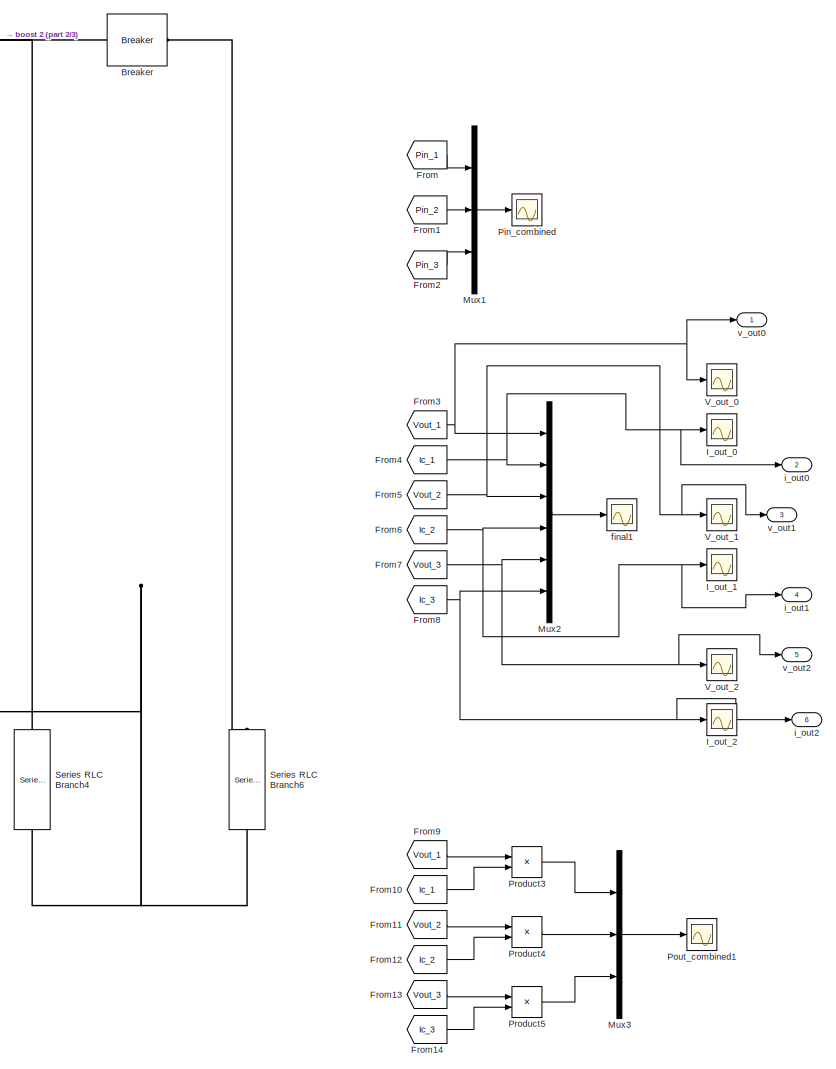
[diagram: root canvas - part 1/3, right side, full height]
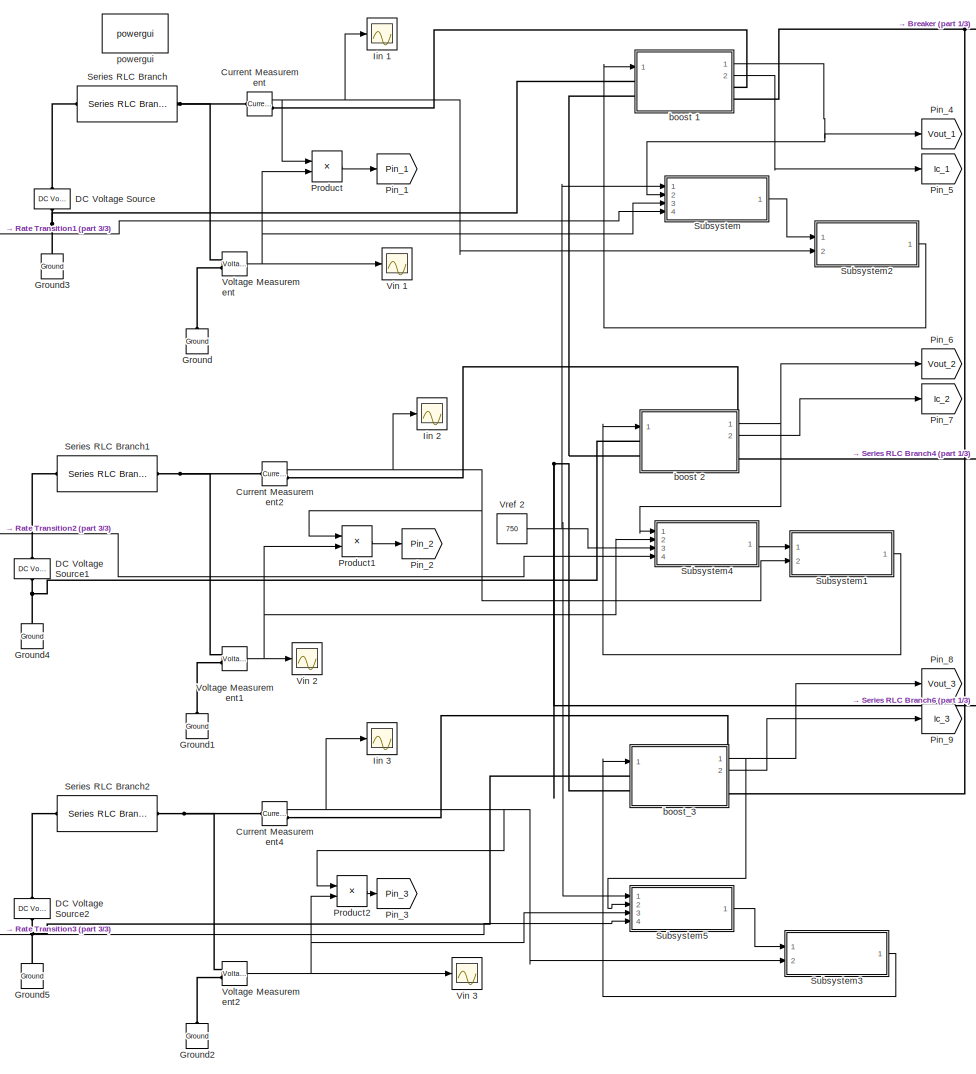
[diagram: root canvas - part 2/3, left side, full height]
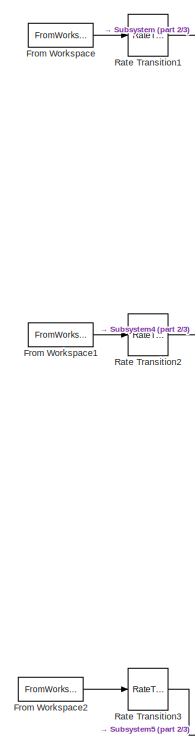
[diagram: root canvas - part 3/3, middle left region]
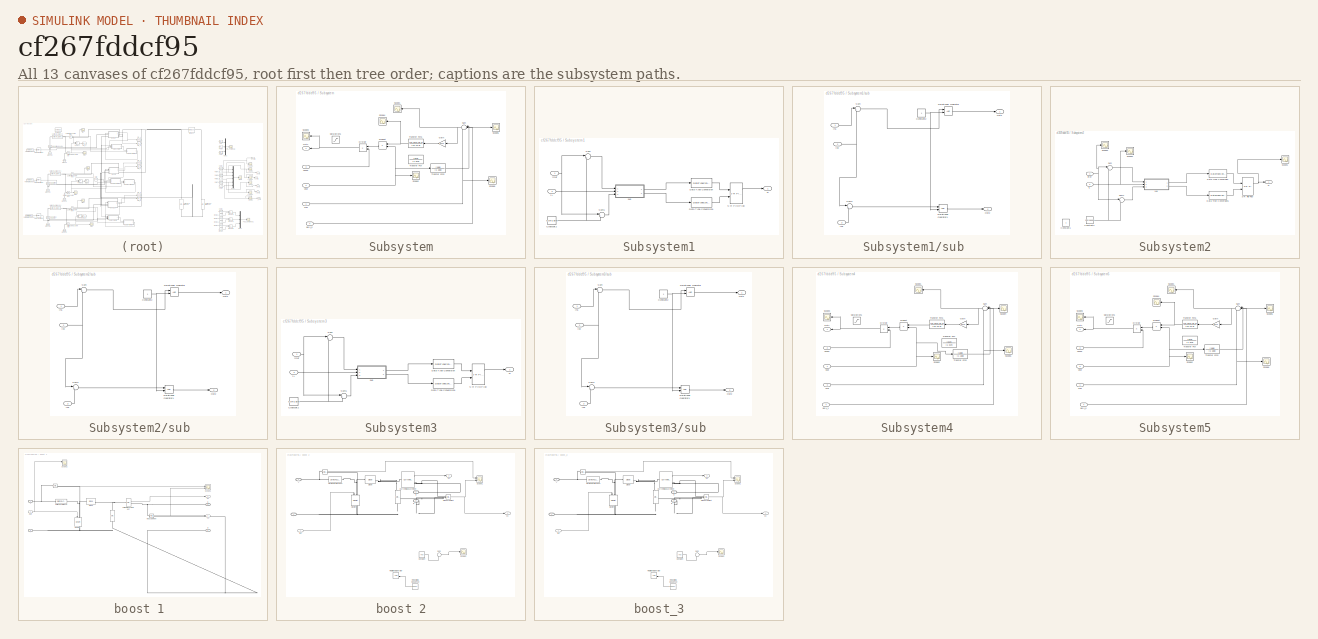
[diagram: thumbnail index - all 13 canvases of the model, root first then tree order]
MODEL slx_cf267fddcf95
KIND model
CONFIG AbsTol = auto
CONFIG EnableMultiTasking = on
CONFIG FixedStep = 1e-2
CONFIG MaxStep = auto
CONFIG MinStep = auto
CONFIG RelTol = 1e-3
CONFIG SampleTimeConstraint = Unconstrained
CONFIG Solver = ode3
CONFIG SolverName = ode3
CONFIG StartTime = 0.0
CONFIG StopTime = 10
BLOCK [Reference] Breaker  REF=powerlib/Elements/Breaker
  Ports = [0, 0, 0, 0, 0, 1, 1]
  SourceBlock = powerlib/Elements/Breaker
  SourceProductBaseCode = PS
  SourceProductName = Simscape Power Systems
  SourceType = Breaker
BLOCK [Reference] Current Measurement  REF=powerlib/Measurements/Current Measurement
  Ports = [0, 1, 0, 0, 0, 1, 1]
  SourceBlock = powerlib/Measurements/Current Measurement
  SourceProductBaseCode = PS
  SourceProductName = Simscape Power Systems
  SourceType = Current Measurement
  UserDataPersistent = on
BLOCK [Reference] Current Measurement2  REF=powerlib/Measurements/Current Measurement
  Ports = [0, 1, 0, 0, 0, 1, 1]
  SourceBlock = powerlib/Measurements/Current Measurement
  SourceProductBaseCode = PS
  SourceProductName = Simscape Power Systems
  SourceType = Current Measurement
  UserDataPersistent = on
BLOCK [Reference] Current Measurement4  REF=powerlib/Measurements/Current Measurement
  Ports = [0, 1, 0, 0, 0, 1, 1]
  SourceBlock = powerlib/Measurements/Current Measurement
  SourceProductBaseCode = PS
  SourceProductName = Simscape Power Systems
  SourceType = Current Measurement
  UserDataPersistent = on
BLOCK [Reference] DC Voltage Source  REF=powerlib/Electrical
Sources/DC Voltage Source
  Ports = [0, 0, 0, 0, 0, 1, 1]
  SourceBlock = powerlib/Electrical\nSources/DC Voltage Source
  SourceProductBaseCode = PS
  SourceProductName = Simscape Power Systems
  SourceType = DC Voltage Source
BLOCK [Reference] DC Voltage Source1  REF=powerlib/Electrical
Sources/DC Voltage Source
  Ports = [0, 0, 0, 0, 0, 1, 1]
  SourceBlock = powerlib/Electrical\nSources/DC Voltage Source
  SourceProductBaseCode = PS
  SourceProductName = Simscape Power Systems
  SourceType = DC Voltage Source
BLOCK [Reference] DC Voltage Source2  REF=powerlib/Electrical
Sources/DC Voltage Source
  Ports = [0, 0, 0, 0, 0, 1, 1]
  SourceBlock = powerlib/Electrical\nSources/DC Voltage Source
  SourceProductBaseCode = PS
  SourceProductName = Simscape Power Systems
  SourceType = DC Voltage Source
BLOCK [From] From
  GotoTag = Pin_1
BLOCK [FromWorkspace] From Workspace
  SampleTime = 0.01
  VariableName = input_0
  ZeroCross = on
BLOCK [FromWorkspace] From Workspace1
  SampleTime = 0.01
  VariableName = input_1
  ZeroCross = on
BLOCK [FromWorkspace] From Workspace2
  SampleTime = 0.01
  VariableName = input_2
  ZeroCross = on
BLOCK [From] From1
  GotoTag = Pin_2
BLOCK [From] From10
  GotoTag = Ic_1
BLOCK [From] From11
  GotoTag = Vout_2
BLOCK [From] From12
  GotoTag = Ic_2
BLOCK [From] From13
  GotoTag = Vout_3
BLOCK [From] From14
  GotoTag = Ic_3
BLOCK [From] From2
  GotoTag = Pin_3
BLOCK [From] From3
  GotoTag = Vout_1
BLOCK [From] From4
  GotoTag = Ic_1
BLOCK [From] From5
  GotoTag = Vout_2
BLOCK [From] From6
  GotoTag = Ic_2
BLOCK [From] From7
  GotoTag = Vout_3
BLOCK [From] From8
  GotoTag = Ic_3
BLOCK [From] From9
  GotoTag = Vout_1
BLOCK [Reference] Ground  REF=powerlib/Elements/Ground
  Ports = [0, 0, 0, 0, 0, 1]
  SourceBlock = powerlib/Elements/Ground
  SourceProductBaseCode = PS
  SourceProductName = Simscape Power Systems
  SourceType = Ground
BLOCK [Reference] Ground1  REF=powerlib/Elements/Ground
  Ports = [0, 0, 0, 0, 0, 1]
  SourceBlock = powerlib/Elements/Ground
  SourceProductBaseCode = PS
  SourceProductName = Simscape Power Systems
  SourceType = Ground
BLOCK [Reference] Ground2  REF=powerlib/Elements/Ground
  Ports = [0, 0, 0, 0, 0, 1]
  SourceBlock = powerlib/Elements/Ground
  SourceProductBaseCode = PS
  SourceProductName = Simscape Power Systems
  SourceType = Ground
BLOCK [Reference] Ground3  REF=powerlib/Elements/Ground
  Ports = [0, 0, 0, 0, 0, 1]
  SourceBlock = powerlib/Elements/Ground
  SourceProductBaseCode = PS
  SourceProductName = Simscape Power Systems
  SourceType = Ground
BLOCK [Reference] Ground4  REF=powerlib/Elements/Ground
  Ports = [0, 0, 0, 0, 0, 1]
  SourceBlock = powerlib/Elements/Ground
  SourceProductBaseCode = PS
  SourceProductName = Simscape Power Systems
  SourceType = Ground
BLOCK [Reference] Ground5  REF=powerlib/Elements/Ground
  Ports = [0, 0, 0, 0, 0, 1]
  SourceBlock = powerlib/Elements/Ground
  SourceProductBaseCode = PS
  SourceProductName = Simscape Power Systems
  SourceType = Ground
BLOCK [Scope] I_out_0
  NumInputPorts = 1
  Ports = [1]
  ScopeSpecificationString = Simulink.scopes.TimeScopeBlockCfg('CurrentConfiguration', extmgr.ConfigurationSet(extmgr.Configuration('Core','General UI',true),extmgr.Configuration('Core','Source UI',true),extmgr.Configuration('Sources','WiredSimulink',true,'DataLoggingVariableName','I_out_0','DataLoggingSaveFormat','StructureWithTime','DataLoggingDecimation','1','DataLoggingDecimateData',true,'DataLogging',true),extmgr.Configu...<+1684ch>
BLOCK [Scope] I_out_1
  NumInputPorts = 1
  Ports = [1]
  ScopeSpecificationString = Simulink.scopes.TimeScopeBlockCfg('CurrentConfiguration', extmgr.ConfigurationSet(extmgr.Configuration('Core','General UI',true),extmgr.Configuration('Core','Source UI',true),extmgr.Configuration('Sources','WiredSimulink',true,'DataLoggingVariableName','I_out_1','DataLoggingSaveFormat','StructureWithTime','DataLoggingDecimation','1','DataLoggingDecimateData',true,'DataLogging',true),extmgr.Configu...<+1645ch>
BLOCK [Scope] I_out_2
  NumInputPorts = 1
  Ports = [1]
  ScopeSpecificationString = Simulink.scopes.TimeScopeBlockCfg('CurrentConfiguration', extmgr.ConfigurationSet(extmgr.Configuration('Core','General UI',true),extmgr.Configuration('Core','Source UI',true),extmgr.Configuration('Sources','WiredSimulink',true,'DataLoggingVariableName','I_out_2','DataLoggingSaveFormat','StructureWithTime','DataLoggingDecimation','1','DataLoggingDecimateData',true,'DataLogging',true),extmgr.Configu...<+1641ch>
BLOCK [Scope] Iin 1
  NumInputPorts = 1
  Ports = [1]
  ScopeSpecificationString = C++SS(StrPVP('Location','[10, 60, 1930, 1051]'),StrPVP('Open','off'),MxPVP('AxesTitles',53,'struct(''axes1'',''%<SignalLabel>'')'),MxPVP('ScopeGraphics',56,'struct(''FigureColor'',''[0.5 0.5 0.5]'',''AxesColor'',''[0 0 0]'',''AxesTickColor'',''[1 1 1]'',''LineColors'',''[1 1 0;1 0 1;0 1 1;1 0 0;0 1 0;0 0 1]'',''LineStyles'',''-|-|-|-|-|-'',''LineWidths'',''[0.5 0.5 0.5 0.5 0.5 0.5]'',''MarkerStyle...<+241ch>
BLOCK [Scope] Iin 2
  NumInputPorts = 1
  Ports = [1]
  ScopeSpecificationString = Simulink.scopes.TimeScopeBlockCfg('CurrentConfiguration', extmgr.ConfigurationSet(extmgr.Configuration('Core','General UI',true),extmgr.Configuration('Core','Source UI',true),extmgr.Configuration('Sources','WiredSimulink',true,'DataLoggingVariableName','ScopeData14','DataLoggingSaveFormat','Array','DataLoggingDecimation','1','DataLoggingDecimateData',true),extmgr.Configuration('Visuals','Time Doma...<+1677ch>
BLOCK [Scope] Iin 3
  NumInputPorts = 1
  Ports = [1]
  ScopeSpecificationString = Simulink.scopes.TimeScopeBlockCfg('CurrentConfiguration', extmgr.ConfigurationSet(extmgr.Configuration('Core','General UI',true),extmgr.Configuration('Core','Source UI',true),extmgr.Configuration('Sources','WiredSimulink',true,'DataLoggingVariableName','ScopeData15','DataLoggingSaveFormat','Array','DataLoggingDecimation','1','DataLoggingDecimateData',true),extmgr.Configuration('Visuals','Time Doma...<+1677ch>
BLOCK [Mux] Mux1
  DisplayOption = bar
  Inputs = 3
  Ports = [3, 1]
BLOCK [Mux] Mux2
  DisplayOption = bar
  Inputs = 6
  Ports = [6, 1]
BLOCK [Mux] Mux3
  DisplayOption = bar
  Inputs = 3
  Ports = [3, 1]
BLOCK [Goto] Pin_1
  GotoTag = Pin_1
BLOCK [Goto] Pin_2
  GotoTag = Pin_2
BLOCK [Goto] Pin_3
  GotoTag = Pin_3
BLOCK [Goto] Pin_4
  GotoTag = Vout_1
BLOCK [Goto] Pin_5
  GotoTag = Ic_1
BLOCK [Goto] Pin_6
  GotoTag = Vout_2
BLOCK [Goto] Pin_7
  GotoTag = Ic_2
BLOCK [Goto] Pin_8
  GotoTag = Vout_3
BLOCK [Goto] Pin_9
  GotoTag = Ic_3
BLOCK [Scope] Pin_combined
  NumInputPorts = 1
  Ports = [1]
  ScopeSpecificationString = Simulink.scopes.TimeScopeBlockCfg('CurrentConfiguration', extmgr.ConfigurationSet(extmgr.Configuration('Core','General UI',true),extmgr.Configuration('Core','Source UI',true),extmgr.Configuration('Sources','WiredSimulink',true,'DataLoggingVariableName','ScopeData16','DataLoggingSaveFormat','Array','DataLoggingDecimation','1','DataLoggingDecimateData',true),extmgr.Configuration('Visuals','Time Doma...<+1698ch>
BLOCK [Scope] Pout_combined1
  NumInputPorts = 1
  Ports = [1]
  ScopeSpecificationString = Simulink.scopes.TimeScopeBlockCfg('CurrentConfiguration', extmgr.ConfigurationSet(extmgr.Configuration('Core','General UI',true),extmgr.Configuration('Core','Source UI',true),extmgr.Configuration('Sources','WiredSimulink',true,'DataLoggingVariableName','ScopeData4','DataLoggingSaveFormat','Array','DataLoggingDecimation','1','DataLoggingDecimateData',true),extmgr.Configuration('Visuals','Time Domai...<+1646ch>
BLOCK [Product] Product
  InputSameDT = off
  OutDataTypeStr = Inherit: Inherit via internal rule
  Ports = [2, 1]
  RndMeth = Floor
  SaturateOnIntegerOverflow = off
BLOCK [Product] Product1
  InputSameDT = off
  OutDataTypeStr = Inherit: Inherit via internal rule
  Ports = [2, 1]
  RndMeth = Floor
  SaturateOnIntegerOverflow = off
BLOCK [Product] Product2
  InputSameDT = off
  OutDataTypeStr = Inherit: Inherit via internal rule
  Ports = [2, 1]
  RndMeth = Floor
  SaturateOnIntegerOverflow = off
BLOCK [Product] Product3
  InputSameDT = off
  OutDataTypeStr = Inherit: Inherit via internal rule
  Ports = [2, 1]
  RndMeth = Floor
  SaturateOnIntegerOverflow = off
BLOCK [Product] Product4
  InputSameDT = off
  OutDataTypeStr = Inherit: Inherit via internal rule
  Ports = [2, 1]
  RndMeth = Floor
  SaturateOnIntegerOverflow = off
BLOCK [Product] Product5
  InputSameDT = off
  OutDataTypeStr = Inherit: Inherit via internal rule
  Ports = [2, 1]
  RndMeth = Floor
  SaturateOnIntegerOverflow = off
BLOCK [RateTransition] Rate Transition1
  OutPortSampleTime = 0.01
BLOCK [RateTransition] Rate Transition2
  OutPortSampleTime = 0.01
BLOCK [RateTransition] Rate Transition3
  OutPortSampleTime = 0.01
BLOCK [Reference] Series RLC Branch  REF=powerlib/Elements/Series RLC Branch
  Ports = [0, 0, 0, 0, 0, 1, 1]
  SourceBlock = powerlib/Elements/Series RLC Branch
  SourceProductBaseCode = PS
  SourceProductName = Simscape Power Systems
  SourceType = Series RLC Branch
BLOCK [Reference] Series RLC Branch1  REF=powerlib/Elements/Series RLC Branch
  Ports = [0, 0, 0, 0, 0, 1, 1]
  SourceBlock = powerlib/Elements/Series RLC Branch
  SourceProductBaseCode = PS
  SourceProductName = Simscape Power Systems
  SourceType = Series RLC Branch
BLOCK [Reference] Series RLC Branch2  REF=powerlib/Elements/Series RLC Branch
  Ports = [0, 0, 0, 0, 0, 1, 1]
  SourceBlock = powerlib/Elements/Series RLC Branch
  SourceProductBaseCode = PS
  SourceProductName = Simscape Power Systems
  SourceType = Series RLC Branch
BLOCK [Reference] Series RLC Branch4  REF=powerlib/Elements/Series RLC Branch
  Ports = [0, 0, 0, 0, 0, 1, 1]
  SourceBlock = powerlib/Elements/Series RLC Branch
  SourceProductBaseCode = PS
  SourceProductName = Simscape Power Systems
  SourceType = Series RLC Branch
BLOCK [Reference] Series RLC Branch6  REF=powerlib/Elements/Series RLC Branch
  Ports = [0, 0, 0, 0, 0, 1, 1]
  SourceBlock = powerlib/Elements/Series RLC Branch
  SourceProductBaseCode = PS
  SourceProductName = Simscape Power Systems
  SourceType = Series RLC Branch
BLOCK [SubSystem] Subsystem
  Ports = [4, 1]
  RequestExecContextInheritance = off
  Variant = off
BLOCK [Product] Subsystem/Divide
  InputSameDT = off
  Inputs = */
  OutDataTypeStr = Inherit: Inherit via internal rule
  Ports = [2, 1]
  RndMeth = Floor
  SaturateOnIntegerOverflow = off
BLOCK [Gain] Subsystem/Gain
  Gain = 0.375
  OutDataTypeStr = Inherit: Inherit via internal rule
  ParamDataTypeStr = Inherit: Inherit via internal rule
  SaturateOnIntegerOverflow = off
BLOCK [Outport] Subsystem/Out1
  IconDisplay = Port number
BLOCK [Product] Subsystem/Product
  InputSameDT = off
  OutDataTypeStr = Inherit: Inherit via internal rule
  Ports = [2, 1]
  RndMeth = Floor
  SaturateOnIntegerOverflow = off
BLOCK [Saturate] Subsystem/Saturation1
  InputPortMap = u0
  LowerLimit = -0.1
  Ports = [1, 1]
  UpperLimit = 45
BLOCK [Scope] Subsystem/Scope1
  NumInputPorts = 1
  Ports = [1]
  ScopeSpecificationString = Simulink.scopes.TimeScopeBlockCfg('CurrentConfiguration', extmgr.ConfigurationSet(extmgr.Configuration('Core','General UI',true),extmgr.Configuration('Core','Source UI',true),extmgr.Configuration('Sources','WiredSimulink',true,'DataLoggingVariableName','ScopeData1','DataLoggingSaveFormat','StructureWithTime','DataLoggingDecimation','1','DataLoggingDecimateData',true),extmgr.Configuration('Visuals'...<+1700ch>
BLOCK [Scope] Subsystem/Scope2
  NumInputPorts = 1
  Ports = [1]
  ScopeSpecificationString = Simulink.scopes.TimeScopeBlockCfg('CurrentConfiguration', extmgr.ConfigurationSet(extmgr.Configuration('Core','General UI',true),extmgr.Configuration('Core','Source UI',true),extmgr.Configuration('Sources','WiredSimulink',true,'DataLoggingSaveFormat','StructureWithTime','DataLoggingDecimation','1','DataLoggingDecimateData',true),extmgr.Configuration('Visuals','Time Domain',true,'SerializedDisplays...<+1649ch>
BLOCK [Scope] Subsystem/Scope3
  NumInputPorts = 1
  Ports = [1]
  ScopeSpecificationString = Simulink.scopes.TimeScopeBlockCfg('CurrentConfiguration', extmgr.ConfigurationSet(extmgr.Configuration('Core','General UI',true),extmgr.Configuration('Core','Source UI',true),extmgr.Configuration('Sources','WiredSimulink',true,'DataLoggingVariableName','ScopeData2','DataLoggingSaveFormat','StructureWithTime','DataLoggingDecimation','1','DataLoggingDecimateData',true),extmgr.Configuration('Visuals'...<+1726ch>
BLOCK [Scope] Subsystem/Scope4
  NumInputPorts = 1
  Ports = [1]
  ScopeSpecificationString = Simulink.scopes.TimeScopeBlockCfg('CurrentConfiguration', extmgr.ConfigurationSet(extmgr.Configuration('Core','General UI',true),extmgr.Configuration('Core','Source UI',true),extmgr.Configuration('Sources','WiredSimulink',true,'DataLoggingVariableName','ScopeData3','DataLoggingSaveFormat','StructureWithTime','DataLoggingDecimation','1','DataLoggingDecimateData',true),extmgr.Configuration('Visuals'...<+1702ch>
BLOCK [Scope] Subsystem/Scope5
  NumInputPorts = 1
  Ports = [1]
  ScopeSpecificationString = Simulink.scopes.TimeScopeBlockCfg('CurrentConfiguration', extmgr.ConfigurationSet(extmgr.Configuration('Core','General UI',true),extmgr.Configuration('Core','Source UI',true),extmgr.Configuration('Sources','WiredSimulink',true,'DataLoggingVariableName','ScopeData7','DataLoggingSaveFormat','StructureWithTime','DataLoggingDecimation','1','DataLoggingDecimateData',true),extmgr.Configuration('Visuals'...<+1733ch>
BLOCK [Scope] Subsystem/Scope6
  NumInputPorts = 1
  Ports = [1]
  ScopeSpecificationString = Simulink.scopes.TimeScopeBlockCfg('CurrentConfiguration', extmgr.ConfigurationSet(extmgr.Configuration('Core','General UI',true),extmgr.Configuration('Core','Source UI',true),extmgr.Configuration('Sources','WiredSimulink',true,'DataLoggingVariableName','ScopeData8','DataLoggingSaveFormat','StructureWithTime','DataLoggingDecimation','1','DataLoggingDecimateData',true),extmgr.Configuration('Visuals'...<+1763ch>
BLOCK [Sum] Subsystem/Sum
  IconShape = round
  InputSameDT = off
  Inputs = |-++
  OutDataTypeStr = Inherit: Inherit via internal rule
  Ports = [3, 1]
  SaturateOnIntegerOverflow = off
BLOCK [TransferFcn] Subsystem/Transfer Fcn
  Denominator = [1 314]
  Numerator = [314]
BLOCK [TransferFcn] Subsystem/Transfer Fcn1
  Denominator = [12.73 0]
  Numerator = [12.73*0.75 1]
BLOCK [TransferFcn] Subsystem/Transfer Fcn2
  Denominator = [1 188]
  Numerator = [188]
BLOCK [Inport] Subsystem/Vconv
  IconDisplay = Port number
  Port = 3
BLOCK [Inport] Subsystem/Vout
  IconDisplay = Port number
  Port = 2
BLOCK [Inport] Subsystem/Vref
  IconDisplay = Port number
BLOCK [Inport] Subsystem/delV_0
  IconDisplay = Port number
  Port = 4
BLOCK [SubSystem] Subsystem1
  Ports = [2, 1]
  RequestExecContextInheritance = off
  Variant = off
BLOCK [Constant] Subsystem1/Constant2
  Value = 0.05*8.8888
BLOCK [Outport] Subsystem1/D 
  IconDisplay = Port number
BLOCK [DataTypeConversion] Subsystem1/Data Type Conversion
  OutDataTypeStr = boolean
  RndMeth = Floor
BLOCK [DataTypeConversion] Subsystem1/Data Type Conversion1
  OutDataTypeStr = boolean
  RndMeth = Floor
  SaturateOnIntegerOverflow = off
BLOCK [Reference] Subsystem1/S-R Flip-Flop  REF=simulink_extras/Flip Flops/S-R
Flip-Flop
  Ports = [2, 2]
  SourceBlock = simulink_extras/Flip Flops/S-R\nFlip-Flop
  SourceProductBaseCode = SL
  SourceProductName = Simulink
  SourceType = SRFlipFlop
BLOCK [Sum] Subsystem1/Sum
  IconShape = round
  InputSameDT = off
  Inputs = |++
  OutDataTypeStr = Inherit: Inherit via internal rule
  Ports = [2, 1]
  SaturateOnIntegerOverflow = off
BLOCK [Sum] Subsystem1/Sum1
  IconShape = round
  InputSameDT = off
  Inputs = |+-
  OutDataTypeStr = Inherit: Inherit via internal rule
  Ports = [2, 1]
  SaturateOnIntegerOverflow = off
BLOCK [Inport] Subsystem1/iL
  IconDisplay = Port number
  Port = 2
BLOCK [Inport] Subsystem1/iRef 
  IconDisplay = Port number
BLOCK [SubSystem] Subsystem1/sub 
  Ports = [3, 2]
  RequestExecContextInheritance = off
  Variant = off
BLOCK [Constant] Subsystem1/sub /Constant2
BLOCK [Inport] Subsystem1/sub /In1
  IconDisplay = Port number
BLOCK [Inport] Subsystem1/sub /In2
  IconDisplay = Port number
  Port = 2
BLOCK [Inport] Subsystem1/sub /In3
  IconDisplay = Port number
  Port = 3
BLOCK [Outport] Subsystem1/sub /Out1
  IconDisplay = Port number
BLOCK [Outport] Subsystem1/sub /Out2
  IconDisplay = Port number
  Port = 2
BLOCK [RelationalOperator] Subsystem1/sub /Relational Operator
  InputSameDT = off
  OutDataTypeStr = boolean
  Ports = [2, 1]
BLOCK [RelationalOperator] Subsystem1/sub /Relational Operator1
  InputSameDT = off
  OutDataTypeStr = boolean
  Ports = [2, 1]
BLOCK [Sum] Subsystem1/sub /Sum
  IconShape = round
  InputSameDT = off
  Inputs = |+-
  OutDataTypeStr = Inherit: Inherit via internal rule
  Ports = [2, 1]
  SaturateOnIntegerOverflow = off
BLOCK [Sum] Subsystem1/sub /Sum1
  IconShape = round
  InputSameDT = off
  Inputs = |+-
  OutDataTypeStr = Inherit: Inherit via internal rule
  Ports = [2, 1]
  SaturateOnIntegerOverflow = off
BLOCK [SubSystem] Subsystem2
  Ports = [2, 1]
  RequestExecContextInheritance = off
  Variant = off
BLOCK [Constant] Subsystem2/Constant1
BLOCK [Constant] Subsystem2/Constant2
  Value = 0.05*8.8888
BLOCK [Outport] Subsystem2/D 
  IconDisplay = Port number
BLOCK [DataTypeConversion] Subsystem2/Data Type Conversion
  OutDataTypeStr = boolean
  RndMeth = Floor
BLOCK [DataTypeConversion] Subsystem2/Data Type Conversion1
  OutDataTypeStr = boolean
  RndMeth = Floor
  SaturateOnIntegerOverflow = off
BLOCK [Reference] Subsystem2/S-R Flip-Flop  REF=simulink_extras/Flip Flops/S-R
Flip-Flop
  Ports = [2, 2]
  SourceBlock = simulink_extras/Flip Flops/S-R\nFlip-Flop
  SourceProductBaseCode = SL
  SourceProductName = Simulink
  SourceType = SRFlipFlop
BLOCK [Scope] Subsystem2/Scope1
  NumInputPorts = 1
  Ports = [1]
  ScopeSpecificationString = Simulink.scopes.TimeScopeBlockCfg('CurrentConfiguration', extmgr.ConfigurationSet(extmgr.Configuration('Core','General UI',true),extmgr.Configuration('Core','Source UI',true),extmgr.Configuration('Sources','WiredSimulink',true,'DataLoggingVariableName','ScopeData5','DataLoggingSaveFormat','StructureWithTime','DataLoggingDecimation','1','DataLoggingDecimateData',true),extmgr.Configuration('Visuals'...<+1713ch>
BLOCK [Scope] Subsystem2/Scope2
  NumInputPorts = 1
  Ports = [1]
  ScopeSpecificationString = Simulink.scopes.TimeScopeBlockCfg('CurrentConfiguration', extmgr.ConfigurationSet(extmgr.Configuration('Core','General UI',true),extmgr.Configuration('Core','Source UI',true),extmgr.Configuration('Sources','WiredSimulink',true,'DataLoggingVariableName','ScopeData6','DataLoggingSaveFormat','StructureWithTime','DataLoggingDecimation','1','DataLoggingDecimateData',true),extmgr.Configuration('Visuals'...<+1691ch>
BLOCK [Scope] Subsystem2/Scope3
  NumInputPorts = 1
  Ports = [1]
  ScopeSpecificationString = Simulink.scopes.TimeScopeBlockCfg('CurrentConfiguration', extmgr.ConfigurationSet(extmgr.Configuration('Core','General UI',true),extmgr.Configuration('Core','Source UI',true),extmgr.Configuration('Sources','WiredSimulink',true,'DataLoggingVariableName','ScopeData18','DataLoggingSaveFormat','StructureWithTime','DataLoggingDecimation','1','DataLoggingDecimateData',true),extmgr.Configuration('Visuals...<+1695ch>
BLOCK [Sum] Subsystem2/Sum
  IconShape = round
  InputSameDT = off
  Inputs = |++
  OutDataTypeStr = Inherit: Inherit via internal rule
  Ports = [2, 1]
  SaturateOnIntegerOverflow = off
BLOCK [Sum] Subsystem2/Sum1
  IconShape = round
  InputSameDT = off
  Inputs = |+-
  OutDataTypeStr = Inherit: Inherit via internal rule
  Ports = [2, 1]
  SaturateOnIntegerOverflow = off
BLOCK [Inport] Subsystem2/iL
  IconDisplay = Port number
  Port = 2
BLOCK [Inport] Subsystem2/iRef 
  IconDisplay = Port number
BLOCK [SubSystem] Subsystem2/sub 
  Ports = [3, 2]
  RequestExecContextInheritance = off
  Variant = off
BLOCK [Constant] Subsystem2/sub /Constant2
BLOCK [Inport] Subsystem2/sub /In1
  IconDisplay = Port number
BLOCK [Inport] Subsystem2/sub /In2
  IconDisplay = Port number
  Port = 2
BLOCK [Inport] Subsystem2/sub /In3
  IconDisplay = Port number
  Port = 3
BLOCK [Outport] Subsystem2/sub /Out1
  IconDisplay = Port number
BLOCK [Outport] Subsystem2/sub /Out2
  IconDisplay = Port number
  Port = 2
BLOCK [RelationalOperator] Subsystem2/sub /Relational Operator
  InputSameDT = off
  OutDataTypeStr = boolean
  Ports = [2, 1]
BLOCK [RelationalOperator] Subsystem2/sub /Relational Operator1
  InputSameDT = off
  OutDataTypeStr = boolean
  Ports = [2, 1]
BLOCK [Sum] Subsystem2/sub /Sum
  IconShape = round
  InputSameDT = off
  Inputs = |+-
  OutDataTypeStr = Inherit: Inherit via internal rule
  Ports = [2, 1]
  SaturateOnIntegerOverflow = off
BLOCK [Sum] Subsystem2/sub /Sum1
  IconShape = round
  InputSameDT = off
  Inputs = |+-
  OutDataTypeStr = Inherit: Inherit via internal rule
  Ports = [2, 1]
  SaturateOnIntegerOverflow = off
BLOCK [SubSystem] Subsystem3
  Ports = [2, 1]
  RequestExecContextInheritance = off
  Variant = off
BLOCK [Constant] Subsystem3/Constant2
  Value = 0.05*8.8888
BLOCK [Outport] Subsystem3/D 
  IconDisplay = Port number
BLOCK [DataTypeConversion] Subsystem3/Data Type Conversion
  OutDataTypeStr = boolean
  RndMeth = Floor
BLOCK [DataTypeConversion] Subsystem3/Data Type Conversion1
  OutDataTypeStr = boolean
  RndMeth = Floor
  SaturateOnIntegerOverflow = off
BLOCK [Reference] Subsystem3/S-R Flip-Flop  REF=simulink_extras/Flip Flops/S-R
Flip-Flop
  Ports = [2, 2]
  SourceBlock = simulink_extras/Flip Flops/S-R\nFlip-Flop
  SourceProductBaseCode = SL
  SourceProductName = Simulink
  SourceType = SRFlipFlop
BLOCK [Sum] Subsystem3/Sum
  IconShape = round
  InputSameDT = off
  Inputs = |++
  OutDataTypeStr = Inherit: Inherit via internal rule
  Ports = [2, 1]
  SaturateOnIntegerOverflow = off
BLOCK [Sum] Subsystem3/Sum1
  IconShape = round
  InputSameDT = off
  Inputs = |+-
  OutDataTypeStr = Inherit: Inherit via internal rule
  Ports = [2, 1]
  SaturateOnIntegerOverflow = off
BLOCK [Inport] Subsystem3/iL
  IconDisplay = Port number
  Port = 2
BLOCK [Inport] Subsystem3/iRef 
  IconDisplay = Port number
BLOCK [SubSystem] Subsystem3/sub 
  Ports = [3, 2]
  RequestExecContextInheritance = off
  Variant = off
BLOCK [Constant] Subsystem3/sub /Constant2
BLOCK [Inport] Subsystem3/sub /In1
  IconDisplay = Port number
BLOCK [Inport] Subsystem3/sub /In2
  IconDisplay = Port number
  Port = 2
BLOCK [Inport] Subsystem3/sub /In3
  IconDisplay = Port number
  Port = 3
BLOCK [Outport] Subsystem3/sub /Out1
  IconDisplay = Port number
BLOCK [Outport] Subsystem3/sub /Out2
  IconDisplay = Port number
  Port = 2
BLOCK [RelationalOperator] Subsystem3/sub /Relational Operator
  InputSameDT = off
  OutDataTypeStr = boolean
  Ports = [2, 1]
BLOCK [RelationalOperator] Subsystem3/sub /Relational Operator1
  InputSameDT = off
  OutDataTypeStr = boolean
  Ports = [2, 1]
BLOCK [Sum] Subsystem3/sub /Sum
  IconShape = round
  InputSameDT = off
  Inputs = |+-
  OutDataTypeStr = Inherit: Inherit via internal rule
  Ports = [2, 1]
  SaturateOnIntegerOverflow = off
BLOCK [Sum] Subsystem3/sub /Sum1
  IconShape = round
  InputSameDT = off
  Inputs = |+-
  OutDataTypeStr = Inherit: Inherit via internal rule
  Ports = [2, 1]
  SaturateOnIntegerOverflow = off
BLOCK [SubSystem] Subsystem4
  Ports = [4, 1]
  RequestExecContextInheritance = off
  Variant = off
BLOCK [Product] Subsystem4/Divide
  InputSameDT = off
  Inputs = */
  OutDataTypeStr = Inherit: Inherit via internal rule
  Ports = [2, 1]
  RndMeth = Floor
  SaturateOnIntegerOverflow = off
BLOCK [Gain] Subsystem4/Gain
  Gain = 0.375
  OutDataTypeStr = Inherit: Inherit via internal rule
  ParamDataTypeStr = Inherit: Inherit via internal rule
  SaturateOnIntegerOverflow = off
BLOCK [Outport] Subsystem4/Out1
  IconDisplay = Port number
BLOCK [Product] Subsystem4/Product
  InputSameDT = off
  OutDataTypeStr = Inherit: Inherit via internal rule
  Ports = [2, 1]
  RndMeth = Floor
  SaturateOnIntegerOverflow = off
BLOCK [Saturate] Subsystem4/Saturation1
  InputPortMap = u0
  LowerLimit = -0.1
  Ports = [1, 1]
  UpperLimit = 45
BLOCK [Scope] Subsystem4/Scope1
  NumInputPorts = 1
  Ports = [1]
  ScopeSpecificationString = C++SS(StrPVP('Location','[10, 60, 1930, 1051]'),StrPVP('Open','off'),MxPVP('AxesTitles',53,'struct(''axes1'',''%<SignalLabel>'')'),MxPVP('ScopeGraphics',56,'struct(''FigureColor'',''[0.5 0.5 0.5]'',''AxesColor'',''[0 0 0]'',''AxesTickColor'',''[1 1 1]'',''LineColors'',''[1 1 0;1 0 1;0 1 1;1 0 0;0 1 0;0 0 1]'',''LineStyles'',''-|-|-|-|-|-'',''LineWidths'',''[0.5 0.5 0.5 0.5 0.5 0.5]'',''MarkerStyle...<+288ch>
BLOCK [Scope] Subsystem4/Scope2
  NumInputPorts = 1
  Ports = [1]
  ScopeSpecificationString = C++SS(StrPVP('Location','[11, 60, 1377, 739]'),StrPVP('Open','off'),MxPVP('AxesTitles',53,'struct(''axes1'',''%<SignalLabel>'')'),MxPVP('ScopeGraphics',56,'struct(''FigureColor'',''[0.5 0.5 0.5]'',''AxesColor'',''[0 0 0]'',''AxesTickColor'',''[1 1 1]'',''LineColors'',''[1 1 0;1 0 1;0 1 1;1 0 0;0 1 0;0 0 1]'',''LineStyles'',''-|-|-|-|-|-'',''LineWidths'',''[0.5 0.5 0.5 0.5 0.5 0.5]'',''MarkerStyles...<+259ch>
BLOCK [Scope] Subsystem4/Scope3
  NumInputPorts = 1
  Ports = [1]
  ScopeSpecificationString = C++SS(StrPVP('Location','[10, 60, 1930, 1051]'),StrPVP('Open','off'),MxPVP('AxesTitles',53,'struct(''axes1'',''%<SignalLabel>'')'),MxPVP('ScopeGraphics',56,'struct(''FigureColor'',''[0.5 0.5 0.5]'',''AxesColor'',''[0 0 0]'',''AxesTickColor'',''[1 1 1]'',''LineColors'',''[1 1 0;1 0 1;0 1 1;1 0 0;0 1 0;0 0 1]'',''LineStyles'',''-|-|-|-|-|-'',''LineWidths'',''[0.5 0.5 0.5 0.5 0.5 0.5]'',''MarkerStyle...<+284ch>
BLOCK [Scope] Subsystem4/Scope4
  NumInputPorts = 1
  Ports = [1]
  ScopeSpecificationString = Simulink.scopes.TimeScopeBlockCfg('CurrentConfiguration', extmgr.ConfigurationSet(extmgr.Configuration('Core','General UI',true),extmgr.Configuration('Core','Source UI',true),extmgr.Configuration('Sources','WiredSimulink',true,'DataLoggingVariableName','ScopeData9','DataLoggingSaveFormat','StructureWithTime','DataLoggingDecimation','1','DataLoggingDecimateData',true),extmgr.Configuration('Visuals'...<+1604ch>
BLOCK [Scope] Subsystem4/Scope5
  NumInputPorts = 1
  Ports = [1]
  ScopeSpecificationString = Simulink.scopes.TimeScopeBlockCfg('CurrentConfiguration', extmgr.ConfigurationSet(extmgr.Configuration('Core','General UI',true),extmgr.Configuration('Core','Source UI',true),extmgr.Configuration('Sources','WiredSimulink',true,'DataLoggingVariableName','ScopeData10','DataLoggingSaveFormat','StructureWithTime','DataLoggingDecimation','1','DataLoggingDecimateData',true),extmgr.Configuration('Visuals...<+1605ch>
BLOCK [Sum] Subsystem4/Sum
  IconShape = round
  InputSameDT = off
  Inputs = |-++
  OutDataTypeStr = Inherit: Inherit via internal rule
  Ports = [3, 1]
  SaturateOnIntegerOverflow = off
BLOCK [TransferFcn] Subsystem4/Transfer Fcn
  Denominator = [1 314]
  Numerator = [314]
BLOCK [TransferFcn] Subsystem4/Transfer Fcn1
  Denominator = [12.73 0]
  Numerator = [12.73*0.75 1]
BLOCK [TransferFcn] Subsystem4/Transfer Fcn2
  Denominator = [1 188]
  Numerator = [188]
BLOCK [Inport] Subsystem4/Vconv
  IconDisplay = Port number
  Port = 2
BLOCK [Inport] Subsystem4/Vout
  IconDisplay = Port number
BLOCK [Inport] Subsystem4/Vref
  IconDisplay = Port number
  Port = 3
BLOCK [Inport] Subsystem4/delV_1
  IconDisplay = Port number
  Port = 4
BLOCK [SubSystem] Subsystem5
  Ports = [4, 1]
  RequestExecContextInheritance = off
  Variant = off
BLOCK [Product] Subsystem5/Divide
  InputSameDT = off
  Inputs = */
  OutDataTypeStr = Inherit: Inherit via internal rule
  Ports = [2, 1]
  RndMeth = Floor
  SaturateOnIntegerOverflow = off
BLOCK [Gain] Subsystem5/Gain
  Gain = 0.375
  OutDataTypeStr = Inherit: Inherit via internal rule
  ParamDataTypeStr = Inherit: Inherit via internal rule
  SaturateOnIntegerOverflow = off
BLOCK [Outport] Subsystem5/Out1
  IconDisplay = Port number
BLOCK [Product] Subsystem5/Product
  InputSameDT = off
  OutDataTypeStr = Inherit: Inherit via internal rule
  Ports = [2, 1]
  RndMeth = Floor
  SaturateOnIntegerOverflow = off
BLOCK [Saturate] Subsystem5/Saturation1
  InputPortMap = u0
  LowerLimit = -0.1
  Ports = [1, 1]
  UpperLimit = 45
BLOCK [Scope] Subsystem5/Scope1
  NumInputPorts = 1
  Ports = [1]
  ScopeSpecificationString = Simulink.scopes.TimeScopeBlockCfg('CurrentConfiguration', extmgr.ConfigurationSet(extmgr.Configuration('Core','General UI',true),extmgr.Configuration('Core','Source UI',true),extmgr.Configuration('Sources','WiredSimulink',true,'DataLoggingVariableName','ScopeData1','DataLoggingSaveFormat','StructureWithTime','DataLoggingDecimation','1','DataLoggingDecimateData',true),extmgr.Configuration('Visuals'...<+1700ch>
BLOCK [Scope] Subsystem5/Scope2
  NumInputPorts = 1
  Ports = [1]
  ScopeSpecificationString = Simulink.scopes.TimeScopeBlockCfg('CurrentConfiguration', extmgr.ConfigurationSet(extmgr.Configuration('Core','General UI',true),extmgr.Configuration('Core','Source UI',true),extmgr.Configuration('Sources','WiredSimulink',true,'DataLoggingSaveFormat','StructureWithTime','DataLoggingDecimation','1','DataLoggingDecimateData',true,'DataLoggingVariableName','ScopeData2'),extmgr.Configuration('Visuals'...<+1688ch>
BLOCK [Scope] Subsystem5/Scope3
  NumInputPorts = 1
  Ports = [1]
  ScopeSpecificationString = Simulink.scopes.TimeScopeBlockCfg('CurrentConfiguration', extmgr.ConfigurationSet(extmgr.Configuration('Core','General UI',true),extmgr.Configuration('Core','Source UI',true),extmgr.Configuration('Sources','WiredSimulink',true,'DataLoggingVariableName','ScopeData3','DataLoggingSaveFormat','StructureWithTime','DataLoggingDecimation','1','DataLoggingDecimateData',true),extmgr.Configuration('Visuals'...<+1726ch>
BLOCK [Scope] Subsystem5/Scope4
  NumInputPorts = 1
  Ports = [1]
  ScopeSpecificationString = Simulink.scopes.TimeScopeBlockCfg('CurrentConfiguration', extmgr.ConfigurationSet(extmgr.Configuration('Core','General UI',true),extmgr.Configuration('Core','Source UI',true),extmgr.Configuration('Sources','WiredSimulink',true,'DataLoggingVariableName','ScopeData4','DataLoggingSaveFormat','StructureWithTime','DataLoggingDecimation','1','DataLoggingDecimateData',true),extmgr.Configuration('Visuals'...<+1702ch>
BLOCK [Scope] Subsystem5/Scope5
  NumInputPorts = 1
  Ports = [1]
  ScopeSpecificationString = Simulink.scopes.TimeScopeBlockCfg('CurrentConfiguration', extmgr.ConfigurationSet(extmgr.Configuration('Core','General UI',true),extmgr.Configuration('Core','Source UI',true),extmgr.Configuration('Sources','WiredSimulink',true,'DataLoggingVariableName','ScopeData5','DataLoggingSaveFormat','StructureWithTime','DataLoggingDecimation','1','DataLoggingDecimateData',true),extmgr.Configuration('Visuals'...<+1733ch>
BLOCK [Scope] Subsystem5/Scope6
  NumInputPorts = 1
  Ports = [1]
  ScopeSpecificationString = Simulink.scopes.TimeScopeBlockCfg('CurrentConfiguration', extmgr.ConfigurationSet(extmgr.Configuration('Core','General UI',true),extmgr.Configuration('Core','Source UI',true),extmgr.Configuration('Sources','WiredSimulink',true,'DataLoggingVariableName','ScopeData6','DataLoggingSaveFormat','StructureWithTime','DataLoggingDecimation','1','DataLoggingDecimateData',true),extmgr.Configuration('Visuals'...<+1763ch>
BLOCK [Sum] Subsystem5/Sum
  IconShape = round
  InputSameDT = off
  Inputs = |-++
  OutDataTypeStr = Inherit: Inherit via internal rule
  Ports = [3, 1]
  SaturateOnIntegerOverflow = off
BLOCK [TransferFcn] Subsystem5/Transfer Fcn
  Denominator = [1 314]
  Numerator = [314]
BLOCK [TransferFcn] Subsystem5/Transfer Fcn1
  Denominator = [12.73 0]
  Numerator = [12.73*0.75 1]
BLOCK [TransferFcn] Subsystem5/Transfer Fcn2
  Denominator = [1 188]
  Numerator = [188]
BLOCK [Inport] Subsystem5/Vconv
  IconDisplay = Port number
  Port = 3
BLOCK [Inport] Subsystem5/Vout
  IconDisplay = Port number
  Port = 2
BLOCK [Inport] Subsystem5/Vref
  IconDisplay = Port number
BLOCK [Inport] Subsystem5/delV_0
  IconDisplay = Port number
  Port = 4
BLOCK [Scope] V_out_0
  NumInputPorts = 1
  Ports = [1]
  ScopeSpecificationString = Simulink.scopes.TimeScopeBlockCfg('CurrentConfiguration', extmgr.ConfigurationSet(extmgr.Configuration('Core','General UI',true),extmgr.Configuration('Core','Source UI',true),extmgr.Configuration('Sources','WiredSimulink',true,'DataLoggingVariableName','V_out_0','DataLoggingSaveFormat','StructureWithTime','DataLoggingDecimation','1','DataLoggingDecimateData',true,'DataLogging',true),extmgr.Configu...<+1717ch>
BLOCK [Scope] V_out_1
  NumInputPorts = 1
  Ports = [1]
  ScopeSpecificationString = Simulink.scopes.TimeScopeBlockCfg('CurrentConfiguration', extmgr.ConfigurationSet(extmgr.Configuration('Core','General UI',true),extmgr.Configuration('Core','Source UI',true),extmgr.Configuration('Sources','WiredSimulink',true,'DataLoggingVariableName','V_out_1','DataLoggingSaveFormat','StructureWithTime','DataLoggingDecimation','1','DataLoggingDecimateData',true,'DataLogging',true),extmgr.Configu...<+1693ch>
BLOCK [Scope] V_out_2
  NumInputPorts = 1
  Ports = [1]
  ScopeSpecificationString = Simulink.scopes.TimeScopeBlockCfg('CurrentConfiguration', extmgr.ConfigurationSet(extmgr.Configuration('Core','General UI',true),extmgr.Configuration('Core','Source UI',true),extmgr.Configuration('Sources','WiredSimulink',true,'DataLoggingVariableName','V_out_2','DataLoggingSaveFormat','StructureWithTime','DataLoggingDecimation','1','DataLoggingDecimateData',true,'DataLogging',true),extmgr.Configu...<+1693ch>
BLOCK [Scope] Vin 1
  NumInputPorts = 1
  Ports = [1]
  ScopeSpecificationString = Simulink.scopes.TimeScopeBlockCfg('CurrentConfiguration', extmgr.ConfigurationSet(extmgr.Configuration('Core','General UI',true),extmgr.Configuration('Core','Source UI',true),extmgr.Configuration('Sources','WiredSimulink',true,'DataLoggingVariableName','ScopeData2','DataLoggingSaveFormat','Array','DataLoggingDecimation','1','DataLoggingDecimateData',true),extmgr.Configuration('Visuals','Time Domai...<+1675ch>
BLOCK [Scope] Vin 2
  NumInputPorts = 1
  Ports = [1]
  ScopeSpecificationString = Simulink.scopes.TimeScopeBlockCfg('CurrentConfiguration', extmgr.ConfigurationSet(extmgr.Configuration('Core','General UI',true),extmgr.Configuration('Core','Source UI',true),extmgr.Configuration('Sources','WiredSimulink',true,'DataLoggingVariableName','ScopeData11','DataLoggingSaveFormat','Array','DataLoggingDecimation','1','DataLoggingDecimateData',true),extmgr.Configuration('Visuals','Time Doma...<+1677ch>
BLOCK [Scope] Vin 3
  NumInputPorts = 1
  Ports = [1]
  ScopeSpecificationString = Simulink.scopes.TimeScopeBlockCfg('CurrentConfiguration', extmgr.ConfigurationSet(extmgr.Configuration('Core','General UI',true),extmgr.Configuration('Core','Source UI',true),extmgr.Configuration('Sources','WiredSimulink',true,'DataLoggingVariableName','ScopeData12','DataLoggingSaveFormat','Array','DataLoggingDecimation','1','DataLoggingDecimateData',true),extmgr.Configuration('Visuals','Time Doma...<+1677ch>
BLOCK [Reference] Voltage Measurement  REF=powerlib/Measurements/Voltage Measurement
  Ports = [0, 1, 0, 0, 0, 2]
  SourceBlock = powerlib/Measurements/Voltage Measurement
  SourceProductBaseCode = PS
  SourceProductName = Simscape Power Systems
  SourceType = Voltage Measurement
  UserDataPersistent = on
BLOCK [Reference] Voltage Measurement1  REF=powerlib/Measurements/Voltage Measurement
  Ports = [0, 1, 0, 0, 0, 2]
  SourceBlock = powerlib/Measurements/Voltage Measurement
  SourceProductBaseCode = PS
  SourceProductName = Simscape Power Systems
  SourceType = Voltage Measurement
  UserDataPersistent = on
BLOCK [Reference] Voltage Measurement2  REF=powerlib/Measurements/Voltage Measurement
  Ports = [0, 1, 0, 0, 0, 2]
  SourceBlock = powerlib/Measurements/Voltage Measurement
  SourceProductBaseCode = PS
  SourceProductName = Simscape Power Systems
  SourceType = Voltage Measurement
  UserDataPersistent = on
BLOCK [Constant] Vref 2
  Value = 750
BLOCK [SubSystem] boost 1 
  Ports = [1, 2, 0, 0, 0, 2, 2]
  RequestExecContextInheritance = off
  Variant = off
BLOCK [Reference] boost 1 /    REF=powerlib/Measurements/Voltage Measurement
  Ports = [0, 1, 0, 0, 0, 2]
  SourceBlock = powerlib/Measurements/Voltage Measurement
  SourceProductBaseCode = PS
  SourceProductName = Simscape Power Systems
  SourceType = Voltage Measurement
BLOCK [Reference] boost 1 /      REF=powerlib/Elements/Series RLC Branch
  Ports = [0, 0, 0, 0, 0, 1, 1]
  SourceBlock = powerlib/Elements/Series RLC Branch
  SourceProductBaseCode = PS
  SourceProductName = Simscape Power Systems
  SourceType = Series RLC Branch
BLOCK [Reference] boost 1 / Measurement  REF=powerlib/Measurements/Voltage Measurement
  Ports = [0, 1, 0, 0, 0, 2]
  SourceBlock = powerlib/Measurements/Voltage Measurement
  SourceProductBaseCode = PS
  SourceProductName = Simscape Power Systems
  SourceType = Voltage Measurement
BLOCK [PMIOPort] boost 1 /+
  Port = 1
  Side = Right
BLOCK [PMIOPort] boost 1 /- 
  Port = 2
  Side = Left
BLOCK [Reference] boost 1 /Current Measurement  REF=powerlib/Measurements/Current Measurement
  Ports = [0, 1, 0, 0, 0, 1, 1]
  SourceBlock = powerlib/Measurements/Current Measurement
  SourceProductBaseCode = PS
  SourceProductName = Simscape Power Systems
  SourceType = Current Measurement
BLOCK [Reference] boost 1 /Diode  REF=powerlib/Power
Electronics/Diode
  Ports = [0, 1, 0, 0, 0, 1, 1]
  SourceBlock = powerlib/Power\nElectronics/Diode
  SourceProductBaseCode = PS
  SourceProductName = Simscape Power Systems
  SourceType = Diode
BLOCK [Inport] boost 1 /Duty
  IconDisplay = Port number
BLOCK [Outport] boost 1 /Ic1
  IconDisplay = Port number
  Port = 2
BLOCK [Reference] boost 1 /Mosfet  REF=powerlib/Power
Electronics/Mosfet
  Ports = [1, 1, 0, 0, 0, 1, 1]
  SourceBlock = powerlib/Power\nElectronics/Mosfet
  SourceProductBaseCode = PS
  SourceProductName = Simscape Power Systems
  SourceType = Mosfet
BLOCK [Scope] boost 1 /Scope1
  NumInputPorts = 2
  Ports = [2]
  ScopeSpecificationString = C++SS(StrPVP('Location','[1, 48, 1921, 1039]'),StrPVP('Open','off'),StrPVP('ZoomMode','yonly'),MxPVP('AxesTitles',53,'struct(''axes1'',''Input voltage'',''axes2'',''output current'')'),MxPVP('ScopeGraphics',56,'struct(''FigureColor'',''[0.501960784313725 0.501960784313725 0.501960784313725]'',''AxesColor'',''[0 0 0]'',''AxesTickColor'',''[1 1 1]'',''LineColors'',''[1 1 0;1 0 1;0 1 1;1 0 0;0 1 0;0 ...<+494ch>
BLOCK [Scope] boost 1 /Scope2
  NumInputPorts = 2
  Ports = [2]
  ScopeSpecificationString = Simulink.scopes.TimeScopeBlockCfg('CurrentConfiguration', extmgr.ConfigurationSet(extmgr.Configuration('Core','General UI',true),extmgr.Configuration('Core','Source UI',true),extmgr.Configuration('Sources','WiredSimulink',true,'DataLoggingVariableName','ScopeData21','DataLoggingSaveFormat','StructureWithTime','DataLoggingDecimation','1','DataLoggingDecimateData',true),extmgr.Configuration('Visuals...<+2396ch>
BLOCK [Reference] boost 1 /Series RLC Branch  REF=powerlib/Elements/Series RLC Branch
  Ports = [0, 0, 0, 0, 0, 1, 1]
  SourceBlock = powerlib/Elements/Series RLC Branch
  SourceProductBaseCode = PS
  SourceProductName = Simscape Power Systems
  SourceType = Series RLC Branch
BLOCK [PMIOPort] boost 1 /l1
  Port = 3
  Side = Right
BLOCK [PMIOPort] boost 1 /l2
  Port = 4
  Side = Left
BLOCK [Outport] boost 1 /vC
  IconDisplay = Port number
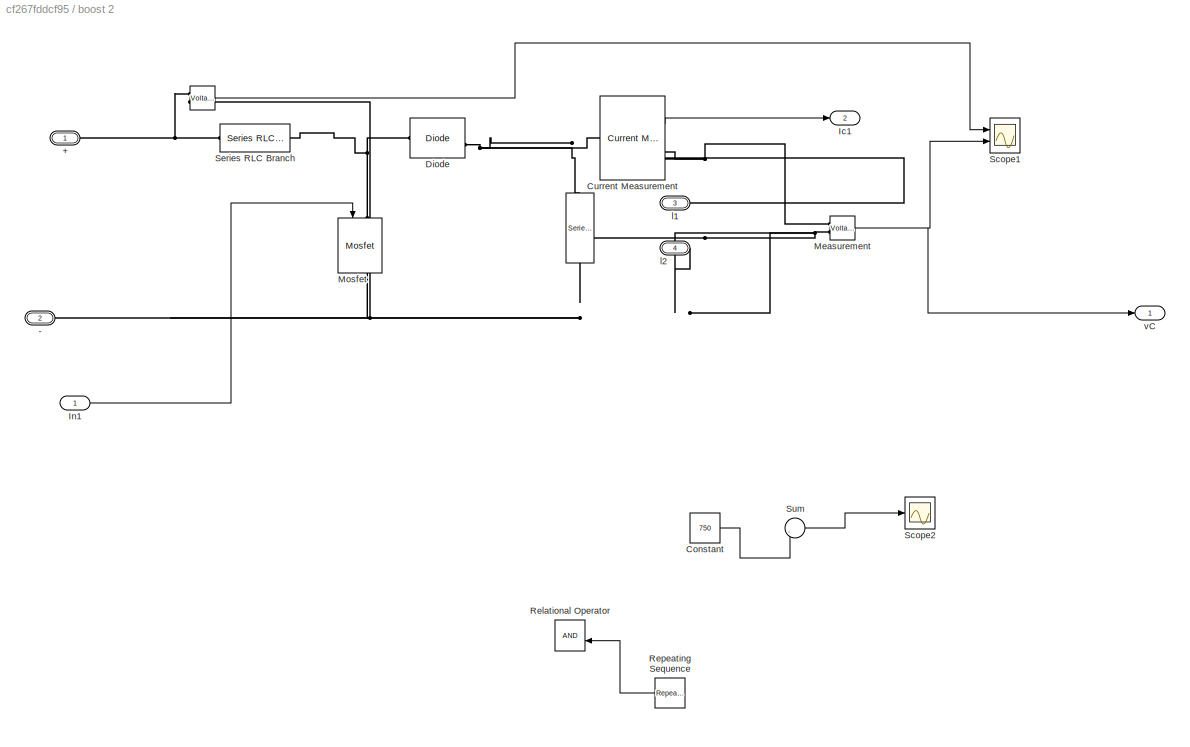
BLOCK [SubSystem] boost 2
  Ports = [1, 2, 0, 0, 0, 2, 2]
  RequestExecContextInheritance = off
  Variant = off
BLOCK [Reference] boost 2/    REF=powerlib/Measurements/Voltage Measurement
  Ports = [0, 1, 0, 0, 0, 2]
  SourceBlock = powerlib/Measurements/Voltage Measurement
  SourceProductBaseCode = PS
  SourceProductName = Simscape Power Systems
  SourceType = Voltage Measurement
BLOCK [Reference] boost 2/      REF=powerlib/Elements/Series RLC Branch
  Ports = [0, 0, 0, 0, 0, 1, 1]
  SourceBlock = powerlib/Elements/Series RLC Branch
  SourceProductBaseCode = PS
  SourceProductName = Simscape Power Systems
  SourceType = Series RLC Branch
BLOCK [Reference] boost 2/ Measurement  REF=powerlib/Measurements/Voltage Measurement
  Ports = [0, 1, 0, 0, 0, 2]
  SourceBlock = powerlib/Measurements/Voltage Measurement
  SourceProductBaseCode = PS
  SourceProductName = Simscape Power Systems
  SourceType = Voltage Measurement
BLOCK [PMIOPort] boost 2/+
  Port = 1
  Side = Right
BLOCK [PMIOPort] boost 2/- 
  Port = 2
  Side = Left
BLOCK [Constant] boost 2/Constant
  Value = 750
BLOCK [Reference] boost 2/Current Measurement  REF=powerlib/Measurements/Current Measurement
  Ports = [0, 1, 0, 0, 0, 1, 1]
  SourceBlock = powerlib/Measurements/Current Measurement
  SourceProductBaseCode = PS
  SourceProductName = Simscape Power Systems
  SourceType = Current Measurement
BLOCK [Reference] boost 2/Diode  REF=powerlib/Power
Electronics/Diode
  Ports = [0, 1, 0, 0, 0, 1, 1]
  SourceBlock = powerlib/Power\nElectronics/Diode
  SourceProductBaseCode = PS
  SourceProductName = Simscape Power Systems
  SourceType = Diode
BLOCK [Outport] boost 2/Ic1
  IconDisplay = Port number
  Port = 2
BLOCK [Inport] boost 2/In1
  IconDisplay = Port number
BLOCK [Reference] boost 2/Mosfet  REF=powerlib/Power
Electronics/Mosfet
  Ports = [1, 1, 0, 0, 0, 1, 1]
  SourceBlock = powerlib/Power\nElectronics/Mosfet
  SourceProductBaseCode = PS
  SourceProductName = Simscape Power Systems
  SourceType = Mosfet
BLOCK [RelationalOperator] boost 2/Relational Operator
  InputSameDT = off
  OutDataTypeStr = boolean
  Ports = [2, 1]
BLOCK [Reference] boost 2/Repeating Sequence  REF=simulink/Sources/Repeating
Sequence
  Ports = [0, 1]
  SourceBlock = simulink/Sources/Repeating\nSequence
  SourceProductBaseCode = SL
  SourceProductName = Simulink
  SourceType = Repeating table
BLOCK [Scope] boost 2/Scope1
  NumInputPorts = 2
  Ports = [2]
  ScopeSpecificationString = Simulink.scopes.TimeScopeBlockCfg('CurrentConfiguration', extmgr.ConfigurationSet(extmgr.Configuration('Core','General UI',true),extmgr.Configuration('Core','Source UI',true),extmgr.Configuration('Sources','WiredSimulink',true,'DataLoggingVariableName','ScopeData3','DataLoggingSaveFormat','StructureWithTime','DataLoggingDecimation','1','DataLoggingDecimateData',true),extmgr.Configuration('Visuals'...<+2412ch>
BLOCK [Scope] boost 2/Scope2
  NumInputPorts = 1
  Ports = [1]
  ScopeSpecificationString = C++SS(StrPVP('Location','[11, 60, 1377, 739]'),StrPVP('Open','off'),MxPVP('AxesTitles',53,'struct(''axes1'',''%<SignalLabel>'')'),MxPVP('ScopeGraphics',56,'struct(''FigureColor'',''[0.5 0.5 0.5]'',''AxesColor'',''[0 0 0]'',''AxesTickColor'',''[1 1 1]'',''LineColors'',''[1 1 0;1 0 1;0 1 1;1 0 0;0 1 0;0 0 1]'',''LineStyles'',''-|-|-|-|-|-'',''LineWidths'',''[0.5 0.5 0.5 0.5 0.5 0.5]'',''MarkerStyles...<+291ch>
BLOCK [Reference] boost 2/Series RLC Branch  REF=powerlib/Elements/Series RLC Branch
  Ports = [0, 0, 0, 0, 0, 1, 1]
  SourceBlock = powerlib/Elements/Series RLC Branch
  SourceProductBaseCode = PS
  SourceProductName = Simscape Power Systems
  SourceType = Series RLC Branch
BLOCK [Sum] boost 2/Sum
  IconShape = round
  InputSameDT = off
  Inputs = |-+
  OutDataTypeStr = Inherit: Inherit via internal rule
  Ports = [2, 1]
  SaturateOnIntegerOverflow = off
BLOCK [PMIOPort] boost 2/l1 
  Port = 3
  Side = Right
BLOCK [PMIOPort] boost 2/l2 
  Port = 4
  Side = Left
BLOCK [Outport] boost 2/vC
  IconDisplay = Port number
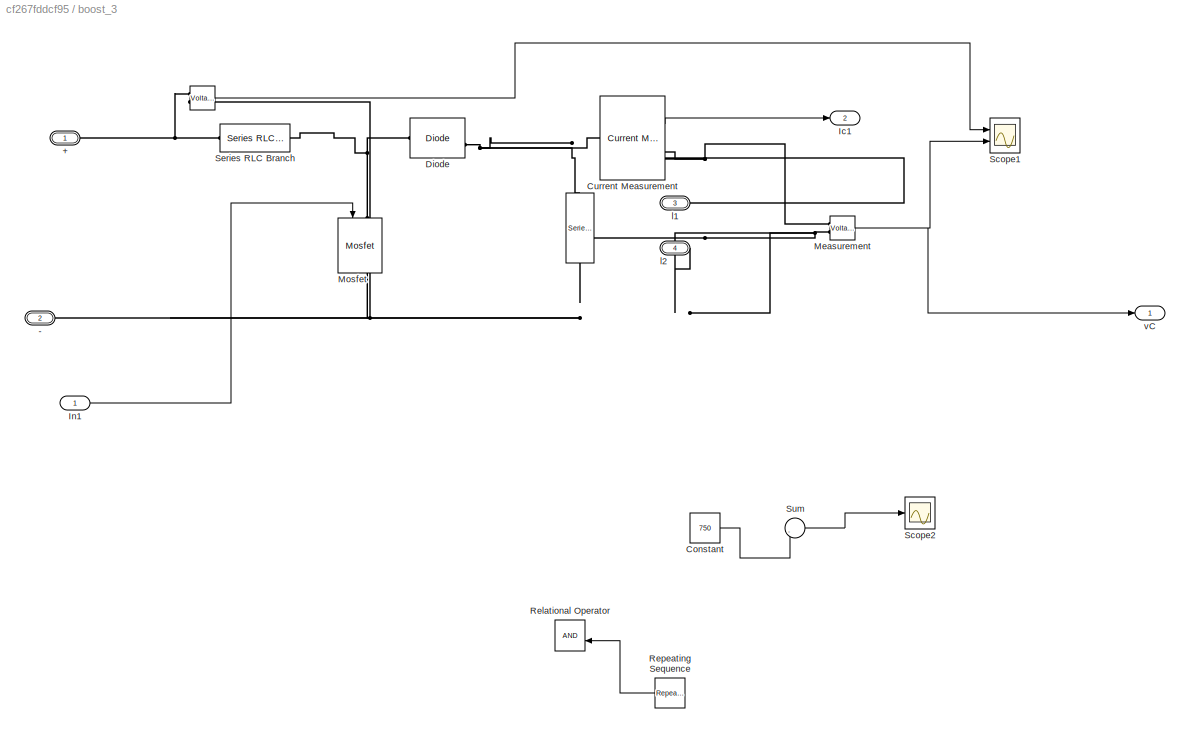
BLOCK [SubSystem] boost_3
  Ports = [1, 2, 0, 0, 0, 2, 2]
  RequestExecContextInheritance = off
  Variant = off
BLOCK [Reference] boost_3/    REF=powerlib/Measurements/Voltage Measurement
  Ports = [0, 1, 0, 0, 0, 2]
  SourceBlock = powerlib/Measurements/Voltage Measurement
  SourceProductBaseCode = PS
  SourceProductName = Simscape Power Systems
  SourceType = Voltage Measurement
BLOCK [Reference] boost_3/      REF=powerlib/Elements/Series RLC Branch
  Ports = [0, 0, 0, 0, 0, 1, 1]
  SourceBlock = powerlib/Elements/Series RLC Branch
  SourceProductBaseCode = PS
  SourceProductName = Simscape Power Systems
  SourceType = Series RLC Branch
BLOCK [Reference] boost_3/ Measurement  REF=powerlib/Measurements/Voltage Measurement
  Ports = [0, 1, 0, 0, 0, 2]
  SourceBlock = powerlib/Measurements/Voltage Measurement
  SourceProductBaseCode = PS
  SourceProductName = Simscape Power Systems
  SourceType = Voltage Measurement
BLOCK [PMIOPort] boost_3/+
  Port = 1
  Side = Right
BLOCK [PMIOPort] boost_3/- 
  Port = 2
  Side = Left
BLOCK [Constant] boost_3/Constant
  Value = 750
BLOCK [Reference] boost_3/Current Measurement  REF=powerlib/Measurements/Current Measurement
  Ports = [0, 1, 0, 0, 0, 1, 1]
  SourceBlock = powerlib/Measurements/Current Measurement
  SourceProductBaseCode = PS
  SourceProductName = Simscape Power Systems
  SourceType = Current Measurement
BLOCK [Reference] boost_3/Diode  REF=powerlib/Power
Electronics/Diode
  Ports = [0, 1, 0, 0, 0, 1, 1]
  SourceBlock = powerlib/Power\nElectronics/Diode
  SourceProductBaseCode = PS
  SourceProductName = Simscape Power Systems
  SourceType = Diode
BLOCK [Outport] boost_3/Ic1
  IconDisplay = Port number
  Port = 2
BLOCK [Inport] boost_3/In1
  IconDisplay = Port number
BLOCK [Reference] boost_3/Mosfet  REF=powerlib/Power
Electronics/Mosfet
  Ports = [1, 1, 0, 0, 0, 1, 1]
  SourceBlock = powerlib/Power\nElectronics/Mosfet
  SourceProductBaseCode = PS
  SourceProductName = Simscape Power Systems
  SourceType = Mosfet
BLOCK [RelationalOperator] boost_3/Relational Operator
  InputSameDT = off
  OutDataTypeStr = boolean
  Ports = [2, 1]
BLOCK [Reference] boost_3/Repeating Sequence  REF=simulink/Sources/Repeating
Sequence
  Ports = [0, 1]
  SourceBlock = simulink/Sources/Repeating\nSequence
  SourceProductBaseCode = SL
  SourceProductName = Simulink
  SourceType = Repeating table
BLOCK [Scope] boost_3/Scope1
  NumInputPorts = 2
  Ports = [2]
  ScopeSpecificationString = C++SS(StrPVP('Location','[1, 48, 1921, 1039]'),StrPVP('Open','off'),StrPVP('ZoomMode','yonly'),MxPVP('AxesTitles',53,'struct(''axes1'',''Input voltage'',''axes2'',''output current'')'),MxPVP('ScopeGraphics',56,'struct(''FigureColor'',''[0.501960784313725 0.501960784313725 0.501960784313725]'',''AxesColor'',''[0 0 0]'',''AxesTickColor'',''[1 1 1]'',''LineColors'',''[1 1 0;1 0 1;0 1 1;1 0 0;0 1 0;0 ...<+494ch>
BLOCK [Scope] boost_3/Scope2
  NumInputPorts = 1
  Ports = [1]
  ScopeSpecificationString = C++SS(StrPVP('Location','[11, 60, 1377, 739]'),StrPVP('Open','off'),MxPVP('AxesTitles',53,'struct(''axes1'',''%<SignalLabel>'')'),MxPVP('ScopeGraphics',56,'struct(''FigureColor'',''[0.5 0.5 0.5]'',''AxesColor'',''[0 0 0]'',''AxesTickColor'',''[1 1 1]'',''LineColors'',''[1 1 0;1 0 1;0 1 1;1 0 0;0 1 0;0 0 1]'',''LineStyles'',''-|-|-|-|-|-'',''LineWidths'',''[0.5 0.5 0.5 0.5 0.5 0.5]'',''MarkerStyles...<+291ch>
BLOCK [Reference] boost_3/Series RLC Branch  REF=powerlib/Elements/Series RLC Branch
  Ports = [0, 0, 0, 0, 0, 1, 1]
  SourceBlock = powerlib/Elements/Series RLC Branch
  SourceProductBaseCode = PS
  SourceProductName = Simscape Power Systems
  SourceType = Series RLC Branch
BLOCK [Sum] boost_3/Sum
  IconShape = round
  InputSameDT = off
  Inputs = |-+
  OutDataTypeStr = Inherit: Inherit via internal rule
  Ports = [2, 1]
  SaturateOnIntegerOverflow = off
BLOCK [PMIOPort] boost_3/l1 
  Port = 3
  Side = Right
BLOCK [PMIOPort] boost_3/l2 
  Port = 4
  Side = Left
BLOCK [Outport] boost_3/vC
  IconDisplay = Port number
BLOCK [Scope] final1
  NumInputPorts = 1
  Ports = [1]
  ScopeSpecificationString = Simulink.scopes.TimeScopeBlockCfg('CurrentConfiguration', extmgr.ConfigurationSet(extmgr.Configuration('Core','General UI',true),extmgr.Configuration('Core','Source UI',true),extmgr.Configuration('Sources','WiredSimulink',true,'DataLoggingVariableName','ScopeData17','DataLoggingSaveFormat','Array','DataLoggingDecimation','1','DataLoggingDecimateData',true),extmgr.Configuration('Visuals','Time Doma...<+1727ch>
BLOCK [Outport] i_out0
  IconDisplay = Port number
  Port = 2
BLOCK [Outport] i_out1
  IconDisplay = Port number
  Port = 4
BLOCK [Outport] i_out2
  IconDisplay = Port number
  Port = 6
BLOCK [Reference] powergui  REF=powerlib/powergui
  Ports = []
  Priority = 1
  SourceBlock = powerlib/powergui
  SourceProductBaseCode = PS
  SourceProductName = Simscape Power Systems
  SourceType = PSB option menu block
BLOCK [Outport] v_out0
  IconDisplay = Port number
BLOCK [Outport] v_out1
  IconDisplay = Port number
  Port = 3
BLOCK [Outport] v_out2
  IconDisplay = Port number
  Port = 5
NET Current Measurement2:1 -> Iin 2:1, Product1:1, Subsystem1:2
NET Current Measurement4:1 -> Iin 3:1, Product2:1, Subsystem3:2
NET Current Measurement:1 -> Iin 1:1, Product:1, Subsystem2:2
LINE From Workspace1:1 -> Rate Transition2:1
LINE From Workspace2:1 -> Rate Transition3:1
LINE From Workspace:1 -> Rate Transition1:1
LINE From10:1 -> Product3:2
LINE From11:1 -> Product4:1
LINE From12:1 -> Product4:2
LINE From13:1 -> Product5:1
LINE From14:1 -> Product5:2
LINE From1:1 -> Mux1:2
LINE From2:1 -> Mux1:3
NET From3:1 -> Mux2:1, V_out_0:1, v_out0:1
NET From4:1 -> I_out_0:1, Mux2:2, i_out0:1
NET From5:1 -> Mux2:3, V_out_1:1, v_out1:1
NET From6:1 -> I_out_1:1, Mux2:4, i_out1:1
NET From7:1 -> Mux2:5, V_out_2:1, v_out2:1
NET From8:1 -> I_out_2:1, Mux2:6, i_out2:1
LINE From9:1 -> Product3:1
LINE From:1 -> Mux1:1
LINE Mux1:1 -> Pin_combined:1
LINE Mux2:1 -> final1:1
LINE Mux3:1 -> Pout_combined1:1
LINE Product1:1 -> Pin_2:1
LINE Product2:1 -> Pin_3:1
LINE Product3:1 -> Mux3:1
LINE Product4:1 -> Mux3:2
LINE Product5:1 -> Mux3:3
LINE Product:1 -> Pin_1:1
LINE Rate Transition1:1 -> Subsystem:4
LINE Rate Transition2:1 -> Subsystem4:4
LINE Rate Transition3:1 -> Subsystem5:4
NET Subsystem/Divide:1 -> Subsystem/Out1:1, Subsystem/Scope3:1
LINE Subsystem/Gain:1 -> Subsystem/Transfer Fcn1:1
LINE Subsystem/Product:1 -> Subsystem/Divide:1
NET Subsystem/Sum:1 -> Subsystem/Gain:1, Subsystem/Scope1:1
NET Subsystem/Transfer Fcn1:1 -> Subsystem/Product:1, Subsystem/Scope4:1
NET Subsystem/Transfer Fcn2:1 -> Subsystem/Scope5:1, Subsystem/Sum:1
LINE Subsystem/Vconv:1 -> Subsystem/Divide:2
NET Subsystem/Vout:1 -> Subsystem/Product:2, Subsystem/Scope2:1, Subsystem/Transfer Fcn2:1
NET Subsystem/Vref:1 -> Subsystem/Scope6:1, Subsystem/Sum:3
LINE Subsystem/delV_0:1 -> Subsystem/Sum:2
NET Subsystem1/Constant2:1 -> Subsystem1/Sum1:2, Subsystem1/Sum:2
LINE Subsystem1/Data Type Conversion1:1 -> Subsystem1/S-R Flip-Flop:2
LINE Subsystem1/Data Type Conversion:1 -> Subsystem1/S-R Flip-Flop:1
LINE Subsystem1/S-R Flip-Flop:1 -> Subsystem1/D :1
LINE Subsystem1/Sum1:1 -> Subsystem1/sub :3
LINE Subsystem1/Sum:1 -> Subsystem1/sub :1
LINE Subsystem1/iL:1 -> Subsystem1/sub :2
NET Subsystem1/iRef :1 -> Subsystem1/Sum1:1, Subsystem1/Sum:1
NET Subsystem1/sub /Constant2:1 -> Subsystem1/sub /Relational Operator1:2, Subsystem1/sub /Relational Operator:2
LINE Subsystem1/sub /In1:1 -> Subsystem1/sub /Sum:1
NET Subsystem1/sub /In2:1 -> Subsystem1/sub /Sum1:1, Subsystem1/sub /Sum:2
LINE Subsystem1/sub /In3:1 -> Subsystem1/sub /Sum1:2
LINE Subsystem1/sub /Relational Operator1:1 -> Subsystem1/sub /Out2:1
LINE Subsystem1/sub /Relational Operator:1 -> Subsystem1/sub /Out1:1
LINE Subsystem1/sub /Sum1:1 -> Subsystem1/sub /Relational Operator1:1
LINE Subsystem1/sub /Sum:1 -> Subsystem1/sub /Relational Operator:1
LINE Subsystem1/sub :1 -> Subsystem1/Data Type Conversion:1
LINE Subsystem1/sub :2 -> Subsystem1/Data Type Conversion1:1
LINE Subsystem1:1 -> boost 2:1
NET Subsystem2/Constant2:1 -> Subsystem2/Sum1:2, Subsystem2/Sum:2
LINE Subsystem2/Data Type Conversion1:1 -> Subsystem2/S-R Flip-Flop:2
LINE Subsystem2/Data Type Conversion:1 -> Subsystem2/S-R Flip-Flop:1
NET Subsystem2/S-R Flip-Flop:1 -> Subsystem2/D :1, Subsystem2/Scope1:1
LINE Subsystem2/Sum1:1 -> Subsystem2/sub :3
LINE Subsystem2/Sum:1 -> Subsystem2/sub :1
NET Subsystem2/iL:1 -> Subsystem2/Scope2:1, Subsystem2/sub :2
NET Subsystem2/iRef :1 -> Subsystem2/Scope3:1, Subsystem2/Sum1:1, Subsystem2/Sum:1
NET Subsystem2/sub /Constant2:1 -> Subsystem2/sub /Relational Operator1:2, Subsystem2/sub /Relational Operator:2
LINE Subsystem2/sub /In1:1 -> Subsystem2/sub /Sum:1
NET Subsystem2/sub /In2:1 -> Subsystem2/sub /Sum1:1, Subsystem2/sub /Sum:2
LINE Subsystem2/sub /In3:1 -> Subsystem2/sub /Sum1:2
LINE Subsystem2/sub /Relational Operator1:1 -> Subsystem2/sub /Out2:1
LINE Subsystem2/sub /Relational Operator:1 -> Subsystem2/sub /Out1:1
LINE Subsystem2/sub /Sum1:1 -> Subsystem2/sub /Relational Operator1:1
LINE Subsystem2/sub /Sum:1 -> Subsystem2/sub /Relational Operator:1
LINE Subsystem2/sub :1 -> Subsystem2/Data Type Conversion:1
LINE Subsystem2/sub :2 -> Subsystem2/Data Type Conversion1:1
LINE Subsystem2:1 -> boost 1 :1
NET Subsystem3/Constant2:1 -> Subsystem3/Sum1:2, Subsystem3/Sum:2
LINE Subsystem3/Data Type Conversion1:1 -> Subsystem3/S-R Flip-Flop:2
LINE Subsystem3/Data Type Conversion:1 -> Subsystem3/S-R Flip-Flop:1
LINE Subsystem3/S-R Flip-Flop:1 -> Subsystem3/D :1
LINE Subsystem3/Sum1:1 -> Subsystem3/sub :3
LINE Subsystem3/Sum:1 -> Subsystem3/sub :1
LINE Subsystem3/iL:1 -> Subsystem3/sub :2
NET Subsystem3/iRef :1 -> Subsystem3/Sum1:1, Subsystem3/Sum:1
NET Subsystem3/sub /Constant2:1 -> Subsystem3/sub /Relational Operator1:2, Subsystem3/sub /Relational Operator:2
LINE Subsystem3/sub /In1:1 -> Subsystem3/sub /Sum:1
NET Subsystem3/sub /In2:1 -> Subsystem3/sub /Sum1:1, Subsystem3/sub /Sum:2
LINE Subsystem3/sub /In3:1 -> Subsystem3/sub /Sum1:2
LINE Subsystem3/sub /Relational Operator1:1 -> Subsystem3/sub /Out2:1
LINE Subsystem3/sub /Relational Operator:1 -> Subsystem3/sub /Out1:1
LINE Subsystem3/sub /Sum1:1 -> Subsystem3/sub /Relational Operator1:1
LINE Subsystem3/sub /Sum:1 -> Subsystem3/sub /Relational Operator:1
LINE Subsystem3/sub :1 -> Subsystem3/Data Type Conversion:1
LINE Subsystem3/sub :2 -> Subsystem3/Data Type Conversion1:1
LINE Subsystem3:1 -> boost_3:1
NET Subsystem4/Divide:1 -> Subsystem4/Out1:1, Subsystem4/Scope3:1
LINE Subsystem4/Gain:1 -> Subsystem4/Transfer Fcn1:1
LINE Subsystem4/Product:1 -> Subsystem4/Divide:1
NET Subsystem4/Sum:1 -> Subsystem4/Gain:1, Subsystem4/Scope1:1
LINE Subsystem4/Transfer Fcn1:1 -> Subsystem4/Product:1
NET Subsystem4/Transfer Fcn2:1 -> Subsystem4/Scope4:1, Subsystem4/Sum:1
LINE Subsystem4/Vconv:1 -> Subsystem4/Divide:2
NET Subsystem4/Vout:1 -> Subsystem4/Product:2, Subsystem4/Scope2:1, Subsystem4/Transfer Fcn2:1
NET Subsystem4/Vref:1 -> Subsystem4/Scope5:1, Subsystem4/Sum:3
LINE Subsystem4/delV_1:1 -> Subsystem4/Sum:2
LINE Subsystem4:1 -> Subsystem1:1
NET Subsystem5/Divide:1 -> Subsystem5/Out1:1, Subsystem5/Scope3:1
LINE Subsystem5/Gain:1 -> Subsystem5/Transfer Fcn1:1
LINE Subsystem5/Product:1 -> Subsystem5/Divide:1
NET Subsystem5/Sum:1 -> Subsystem5/Gain:1, Subsystem5/Scope1:1
NET Subsystem5/Transfer Fcn1:1 -> Subsystem5/Product:1, Subsystem5/Scope4:1
NET Subsystem5/Transfer Fcn2:1 -> Subsystem5/Scope5:1, Subsystem5/Sum:1
LINE Subsystem5/Vconv:1 -> Subsystem5/Divide:2
NET Subsystem5/Vout:1 -> Subsystem5/Product:2, Subsystem5/Scope2:1, Subsystem5/Transfer Fcn2:1
NET Subsystem5/Vref:1 -> Subsystem5/Scope6:1, Subsystem5/Sum:3
LINE Subsystem5/delV_0:1 -> Subsystem5/Sum:2
LINE Subsystem5:1 -> Subsystem3:1
LINE Subsystem:1 -> Subsystem2:1
NET Voltage Measurement1:1 -> Product1:2, Subsystem4:2, Vin 2:1
NET Voltage Measurement2:1 -> Product2:2, Subsystem5:3, Vin 3:1
NET Voltage Measurement:1 -> Product:2, Subsystem:3, Vin 1:1
NET Vref 2:1 -> Subsystem4:3, Subsystem5:1, Subsystem:1
LINE boost 1 /  :1 -> boost 1 /Scope1:1
NET boost 1 / Measurement:1 -> boost 1 /Scope1:2, boost 1 /vC:1
LINE boost 1 /Current Measurement:1 -> boost 1 /Ic1:1
NET boost 1 /Duty:1 -> boost 1 /Mosfet:1, boost 1 /Scope2:1
NET boost 1 :1 -> Pin_4:1, Subsystem:2
LINE boost 1 :2 -> Pin_5:1
LINE boost 2/  :1 -> boost 2/Scope1:1
NET boost 2/ Measurement:1 -> boost 2/Scope1:2, boost 2/vC:1
LINE boost 2/Constant:1 -> boost 2/Sum:2
LINE boost 2/Current Measurement:1 -> boost 2/Ic1:1
LINE boost 2/In1:1 -> boost 2/Mosfet:1
LINE boost 2/Repeating Sequence:1 -> boost 2/Relational Operator:2
LINE boost 2/Sum:1 -> boost 2/Scope2:1
NET boost 2:1 -> Pin_6:1, Subsystem4:1
LINE boost 2:2 -> Pin_7:1
LINE boost_3/  :1 -> boost_3/Scope1:1
NET boost_3/ Measurement:1 -> boost_3/Scope1:2, boost_3/vC:1
LINE boost_3/Constant:1 -> boost_3/Sum:2
LINE boost_3/Current Measurement:1 -> boost_3/Ic1:1
LINE boost_3/In1:1 -> boost_3/Mosfet:1
LINE boost_3/Repeating Sequence:1 -> boost_3/Relational Operator:2
LINE boost_3/Sum:1 -> boost_3/Scope2:1
NET boost_3:1 -> Pin_8:1, Subsystem5:2
LINE boost_3:2 -> Pin_9:1
PNET net1: Breaker:LConn1 -- Series RLC Branch4:RConn1 -- boost 1 :RConn2 -- boost 2:RConn2 -- boost_3:RConn2
PLINE Breaker:RConn1 -- Series RLC Branch6:RConn1
PNET net2: Current Measurement2:LConn1 -- Series RLC Branch1:LConn1 -- Voltage Measurement1:LConn1
PLINE Current Measurement2:RConn1 -- boost 2:RConn1
PNET net3: Current Measurement4:LConn1 -- Series RLC Branch2:LConn1 -- Voltage Measurement2:LConn1
PLINE Current Measurement4:RConn1 -- boost_3:RConn1
PNET net4: Current Measurement:LConn1 -- Series RLC Branch:LConn1 -- Voltage Measurement:LConn1
PLINE Current Measurement:RConn1 -- boost 1 :RConn1
PNET net5: DC Voltage Source1:LConn1 -- Ground4:LConn1 -- boost 2:LConn1
PLINE DC Voltage Source1:RConn1 -- Series RLC Branch1:RConn1
PNET net6: DC Voltage Source2:LConn1 -- Ground5:LConn1 -- boost_3:LConn1
PLINE DC Voltage Source2:RConn1 -- Series RLC Branch2:RConn1
PNET net7: DC Voltage Source:LConn1 -- Ground3:LConn1 -- boost 1 :LConn1
PLINE DC Voltage Source:RConn1 -- Series RLC Branch:RConn1
PLINE Ground1:LConn1 -- Voltage Measurement1:LConn2
PLINE Ground2:LConn1 -- Voltage Measurement2:LConn2
PLINE Ground:LConn1 -- Voltage Measurement:LConn2
PNET net8: Series RLC Branch4:LConn1 -- Series RLC Branch6:LConn1 -- boost 1 :LConn2 -- boost 2:LConn2 -- boost_3:LConn2
PNET net9: boost 1 /    :LConn1 -- boost 1 /Current Measurement:LConn1 -- boost 1 /Diode:RConn1
PNET net10: boost 1 /    :RConn1 -- boost 1 /  :LConn2 -- boost 1 / Measurement:LConn2 -- boost 1 /- :RConn1 -- boost 1 /Mosfet:RConn1 -- boost 1 /l2:RConn1
PNET net11: boost 1 /  :LConn1 -- boost 1 /+:RConn1 -- boost 1 /Series RLC Branch:LConn1
PNET net12: boost 1 / Measurement:LConn1 -- boost 1 /Current Measurement:RConn1 -- boost 1 /l1:RConn1
PNET net13: boost 1 /Diode:LConn1 -- boost 1 /Mosfet:LConn1 -- boost 1 /Series RLC Branch:RConn1
PNET net14: boost 2/    :LConn1 -- boost 2/Current Measurement:LConn1 -- boost 2/Diode:RConn1
PNET net15: boost 2/    :RConn1 -- boost 2/  :LConn2 -- boost 2/ Measurement:LConn2 -- boost 2/- :RConn1 -- boost 2/Mosfet:RConn1 -- boost 2/l2 :RConn1
PNET net16: boost 2/  :LConn1 -- boost 2/+:RConn1 -- boost 2/Series RLC Branch:LConn1
PNET net17: boost 2/ Measurement:LConn1 -- boost 2/Current Measurement:RConn1 -- boost 2/l1 :RConn1
PNET net18: boost 2/Diode:LConn1 -- boost 2/Mosfet:LConn1 -- boost 2/Series RLC Branch:RConn1
PNET net19: boost_3/    :LConn1 -- boost_3/Current Measurement:LConn1 -- boost_3/Diode:RConn1
PNET net20: boost_3/    :RConn1 -- boost_3/  :LConn2 -- boost_3/ Measurement:LConn2 -- boost_3/- :RConn1 -- boost_3/Mosfet:RConn1 -- boost_3/l2 :RConn1
PNET net21: boost_3/  :LConn1 -- boost_3/+:RConn1 -- boost_3/Series RLC Branch:LConn1
PNET net22: boost_3/ Measurement:LConn1 -- boost_3/Current Measurement:RConn1 -- boost_3/l1 :RConn1
PNET net23: boost_3/Diode:LConn1 -- boost_3/Mosfet:LConn1 -- boost_3/Series RLC Branch:RConn1
note: NET lines group one-source signal fan-out (src -> all destinations, sorted); 1:1 wires keep LINE; PNET lines group multi-terminal physical nets as a canonical sorted terminal list (undirected conserving connections); 2-terminal nets keep the pairwise PLINE form
